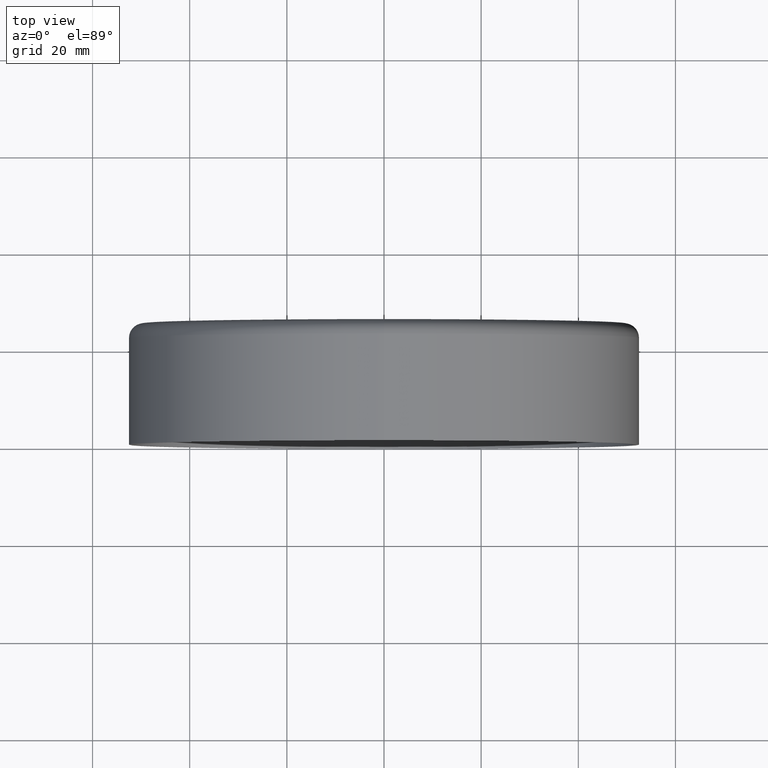
[diagram: clean part render]
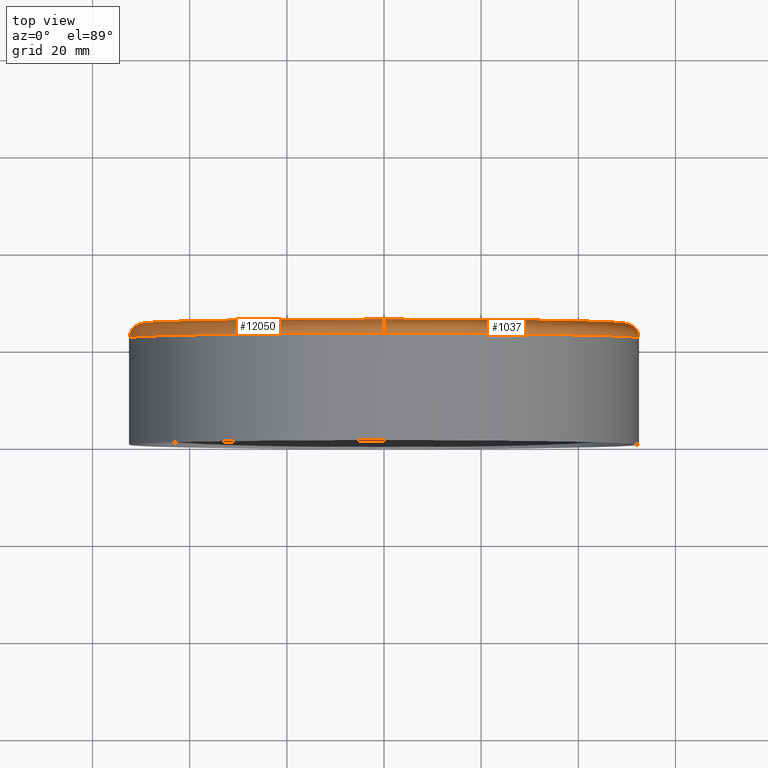
[diagram: same view with one multi-face feature highlighted, each face labeled with its STEP entity id]
A machine part, top view. The highlighted faces form ONE feature: a constant-radius fillet chain: 2 tangent blend faces with common blend radius 3 mm. The faces share edges in the B-rep.
Their STEP definitions:
[1] entity #1037 (Torus):
#348 = CARTESIAN_POINT ( 'NONE',  ( 0.000000000000000000, 22.00000000000000355, -49.50000000000000000 ) ) ;
#899 = CARTESIAN_POINT ( 'NONE',  ( 6.062001655779398511E-15, 22.00000000000000355, 49.50000000000000000 ) ) ;
#1037 = ADVANCED_FACE ( 'NONE', ( #9889 ), #14613, .T. ) ;
#1102 = ORIENTED_EDGE ( 'NONE', *, *, #4677, .T. ) ;
#1254 = VERTEX_POINT ( 'NONE', #11614 ) ;
#1970 = DIRECTION ( 'NONE',  ( -0.000000000000000000, -1.000000000000000000, -0.000000000000000000 ) ) ;
#2601 = AXIS2_PLACEMENT_3D ( 'NONE', #10029, #2638, #3944 ) ;
#2638 = DIRECTION ( 'NONE',  ( -0.000000000000000000, -1.000000000000000000, -0.000000000000000000 ) ) ;
#2820 = AXIS2_PLACEMENT_3D ( 'NONE', #10662, #1970, #3113 ) ;
#3113 = DIRECTION ( 'NONE',  ( 0.000000000000000000, 0.000000000000000000, -1.000000000000000000 ) ) ;
#3944 = DIRECTION ( 'NONE',  ( 0.000000000000000000, 0.000000000000000000, -1.000000000000000000 ) ) ;
#4677 = EDGE_CURVE ( 'NONE', #13938, #4841, #7288, .T. ) ;
#4715 = DIRECTION ( 'NONE',  ( -1.224646799147351975E-16, 0.000000000000000000, -1.000000000000000000 ) ) ;
#4841 = VERTEX_POINT ( 'NONE', #12808 ) ;
#5002 = DIRECTION ( 'NONE',  ( -0.000000000000000000, -1.000000000000000000, -0.000000000000000000 ) ) ;
#5243 = AXIS2_PLACEMENT_3D ( 'NONE', #348, #9131, #5508 ) ;
#5508 = DIRECTION ( 'NONE',  ( 0.000000000000000000, 0.000000000000000000, 1.000000000000000000 ) ) ;
#5576 = EDGE_CURVE ( 'NONE', #1254, #13938, #12173, .T. ) ;
#6159 = DIRECTION ( 'NONE',  ( 0.000000000000000000, 0.000000000000000000, -1.000000000000000000 ) ) ;
#6743 = ORIENTED_EDGE ( 'NONE', *, *, #8582, .F. ) ;
#7288 = CIRCLE ( 'NONE', #10894, 3.000000000000002665 ) ;
#7507 = CARTESIAN_POINT ( 'NONE',  ( 6.245698675651501233E-15, 25.00000000000000000, 49.50000000000000000 ) ) ;
#8350 = EDGE_CURVE ( 'NONE', #9065, #4841, #15878, .T. ) ;
#8582 = EDGE_CURVE ( 'NONE', #1254, #9065, #14272, .T. ) ;
#8818 = CARTESIAN_POINT ( 'NONE',  ( 0.000000000000000000, 22.00000000000000355, -52.50000000000000711 ) ) ;
#9065 = VERTEX_POINT ( 'NONE', #8818 ) ;
#9131 = DIRECTION ( 'NONE',  ( -1.000000000000000000, 0.000000000000000000, 0.000000000000000000 ) ) ;
#9325 = AXIS2_PLACEMENT_3D ( 'NONE', #13675, #5002, #6159 ) ;
#9889 = FACE_OUTER_BOUND ( 'NONE', #12673, .T. ) ;
#10029 = CARTESIAN_POINT ( 'NONE',  ( 0.000000000000000000, 25.00000000000000000, 0.000000000000000000 ) ) ;
#10654 = ORIENTED_EDGE ( 'NONE', *, *, #5576, .T. ) ;
#10662 = CARTESIAN_POINT ( 'NONE',  ( 0.000000000000000000, 22.00000000000000355, 0.000000000000000000 ) ) ;
#10894 = AXIS2_PLACEMENT_3D ( 'NONE', #899, #13544, #4715 ) ;
#11614 = CARTESIAN_POINT ( 'NONE',  ( 0.000000000000000000, 25.00000000000000000, -49.50000000000000000 ) ) ;
#12173 = CIRCLE ( 'NONE', #2601, 49.50000000000000000 ) ;
#12673 = EDGE_LOOP ( 'NONE', ( #10654, #1102, #13636, #6743 ) ) ;
#12808 = CARTESIAN_POINT ( 'NONE',  ( 6.429395695523604744E-15, 22.00000000000000355, 52.50000000000000711 ) ) ;
#13544 = DIRECTION ( 'NONE',  ( 1.000000000000000000, 0.000000000000000000, -1.224646799147353207E-16 ) ) ;
#13636 = ORIENTED_EDGE ( 'NONE', *, *, #8350, .F. ) ;
#13675 = CARTESIAN_POINT ( 'NONE',  ( 0.000000000000000000, 22.00000000000000355, 0.000000000000000000 ) ) ;
#13938 = VERTEX_POINT ( 'NONE', #7507 ) ;
#14272 = CIRCLE ( 'NONE', #5243, 3.000000000000002665 ) ;
#14613 = TOROIDAL_SURFACE ( 'NONE', #9325, 49.50000000000000000, 3.000000000000000888 ) ;
#15878 = CIRCLE ( 'NONE', #2820, 52.50000000000000711 ) ;
[2] entity #12050 (Torus):
#67 = CARTESIAN_POINT ( 'NONE',  ( 0.000000000000000000, 22.00000000000000355, 0.000000000000000000 ) ) ;
#348 = CARTESIAN_POINT ( 'NONE',  ( 0.000000000000000000, 22.00000000000000355, -49.50000000000000000 ) ) ;
#613 = ORIENTED_EDGE ( 'NONE', *, *, #11487, .F. ) ;
#899 = CARTESIAN_POINT ( 'NONE',  ( 6.062001655779398511E-15, 22.00000000000000355, 49.50000000000000000 ) ) ;
#1254 = VERTEX_POINT ( 'NONE', #11614 ) ;
#1684 = FACE_OUTER_BOUND ( 'NONE', #15144, .T. ) ;
#2368 = ORIENTED_EDGE ( 'NONE', *, *, #4677, .F. ) ;
#2379 = AXIS2_PLACEMENT_3D ( 'NONE', #6072, #14857, #14959 ) ;
#3705 = DIRECTION ( 'NONE',  ( 0.000000000000000000, 0.000000000000000000, -1.000000000000000000 ) ) ;
#4677 = EDGE_CURVE ( 'NONE', #13938, #4841, #7288, .T. ) ;
#4715 = DIRECTION ( 'NONE',  ( -1.224646799147351975E-16, 0.000000000000000000, -1.000000000000000000 ) ) ;
#4841 = VERTEX_POINT ( 'NONE', #12808 ) ;
#5102 = DIRECTION ( 'NONE',  ( -0.000000000000000000, -1.000000000000000000, -0.000000000000000000 ) ) ;
#5243 = AXIS2_PLACEMENT_3D ( 'NONE', #348, #9131, #5508 ) ;
#5508 = DIRECTION ( 'NONE',  ( 0.000000000000000000, 0.000000000000000000, 1.000000000000000000 ) ) ;
#5551 = CARTESIAN_POINT ( 'NONE',  ( 0.000000000000000000, 22.00000000000000355, 0.000000000000000000 ) ) ;
#5784 = DIRECTION ( 'NONE',  ( -0.000000000000000000, -1.000000000000000000, -0.000000000000000000 ) ) ;
#5822 = EDGE_CURVE ( 'NONE', #13938, #1254, #11163, .T. ) ;
#6072 = CARTESIAN_POINT ( 'NONE',  ( 0.000000000000000000, 25.00000000000000000, 0.000000000000000000 ) ) ;
#6534 = ORIENTED_EDGE ( 'NONE', *, *, #8582, .T. ) ;
#6559 = TOROIDAL_SURFACE ( 'NONE', #9270, 49.50000000000000000, 3.000000000000000888 ) ;
#6798 = DIRECTION ( 'NONE',  ( 0.000000000000000000, 0.000000000000000000, -1.000000000000000000 ) ) ;
#7288 = CIRCLE ( 'NONE', #10894, 3.000000000000002665 ) ;
#7507 = CARTESIAN_POINT ( 'NONE',  ( 6.245698675651501233E-15, 25.00000000000000000, 49.50000000000000000 ) ) ;
#8582 = EDGE_CURVE ( 'NONE', #1254, #9065, #14272, .T. ) ;
#8818 = CARTESIAN_POINT ( 'NONE',  ( 0.000000000000000000, 22.00000000000000355, -52.50000000000000711 ) ) ;
#9065 = VERTEX_POINT ( 'NONE', #8818 ) ;
#9131 = DIRECTION ( 'NONE',  ( -1.000000000000000000, 0.000000000000000000, 0.000000000000000000 ) ) ;
#9270 = AXIS2_PLACEMENT_3D ( 'NONE', #67, #5102, #3705 ) ;
#10182 = AXIS2_PLACEMENT_3D ( 'NONE', #5551, #5784, #6798 ) ;
#10486 = CIRCLE ( 'NONE', #10182, 52.50000000000000711 ) ;
#10894 = AXIS2_PLACEMENT_3D ( 'NONE', #899, #13544, #4715 ) ;
#11163 = CIRCLE ( 'NONE', #2379, 49.50000000000000000 ) ;
#11487 = EDGE_CURVE ( 'NONE', #4841, #9065, #10486, .T. ) ;
#11614 = CARTESIAN_POINT ( 'NONE',  ( 0.000000000000000000, 25.00000000000000000, -49.50000000000000000 ) ) ;
#12050 = ADVANCED_FACE ( 'NONE', ( #1684 ), #6559, .T. ) ;
#12808 = CARTESIAN_POINT ( 'NONE',  ( 6.429395695523604744E-15, 22.00000000000000355, 52.50000000000000711 ) ) ;
#13544 = DIRECTION ( 'NONE',  ( 1.000000000000000000, 0.000000000000000000, -1.224646799147353207E-16 ) ) ;
#13938 = VERTEX_POINT ( 'NONE', #7507 ) ;
#13966 = ORIENTED_EDGE ( 'NONE', *, *, #5822, .T. ) ;
#14272 = CIRCLE ( 'NONE', #5243, 3.000000000000002665 ) ;
#14857 = DIRECTION ( 'NONE',  ( -0.000000000000000000, -1.000000000000000000, -0.000000000000000000 ) ) ;
#14959 = DIRECTION ( 'NONE',  ( 0.000000000000000000, 0.000000000000000000, -1.000000000000000000 ) ) ;
#15144 = EDGE_LOOP ( 'NONE', ( #2368, #13966, #6534, #613 ) ) ;